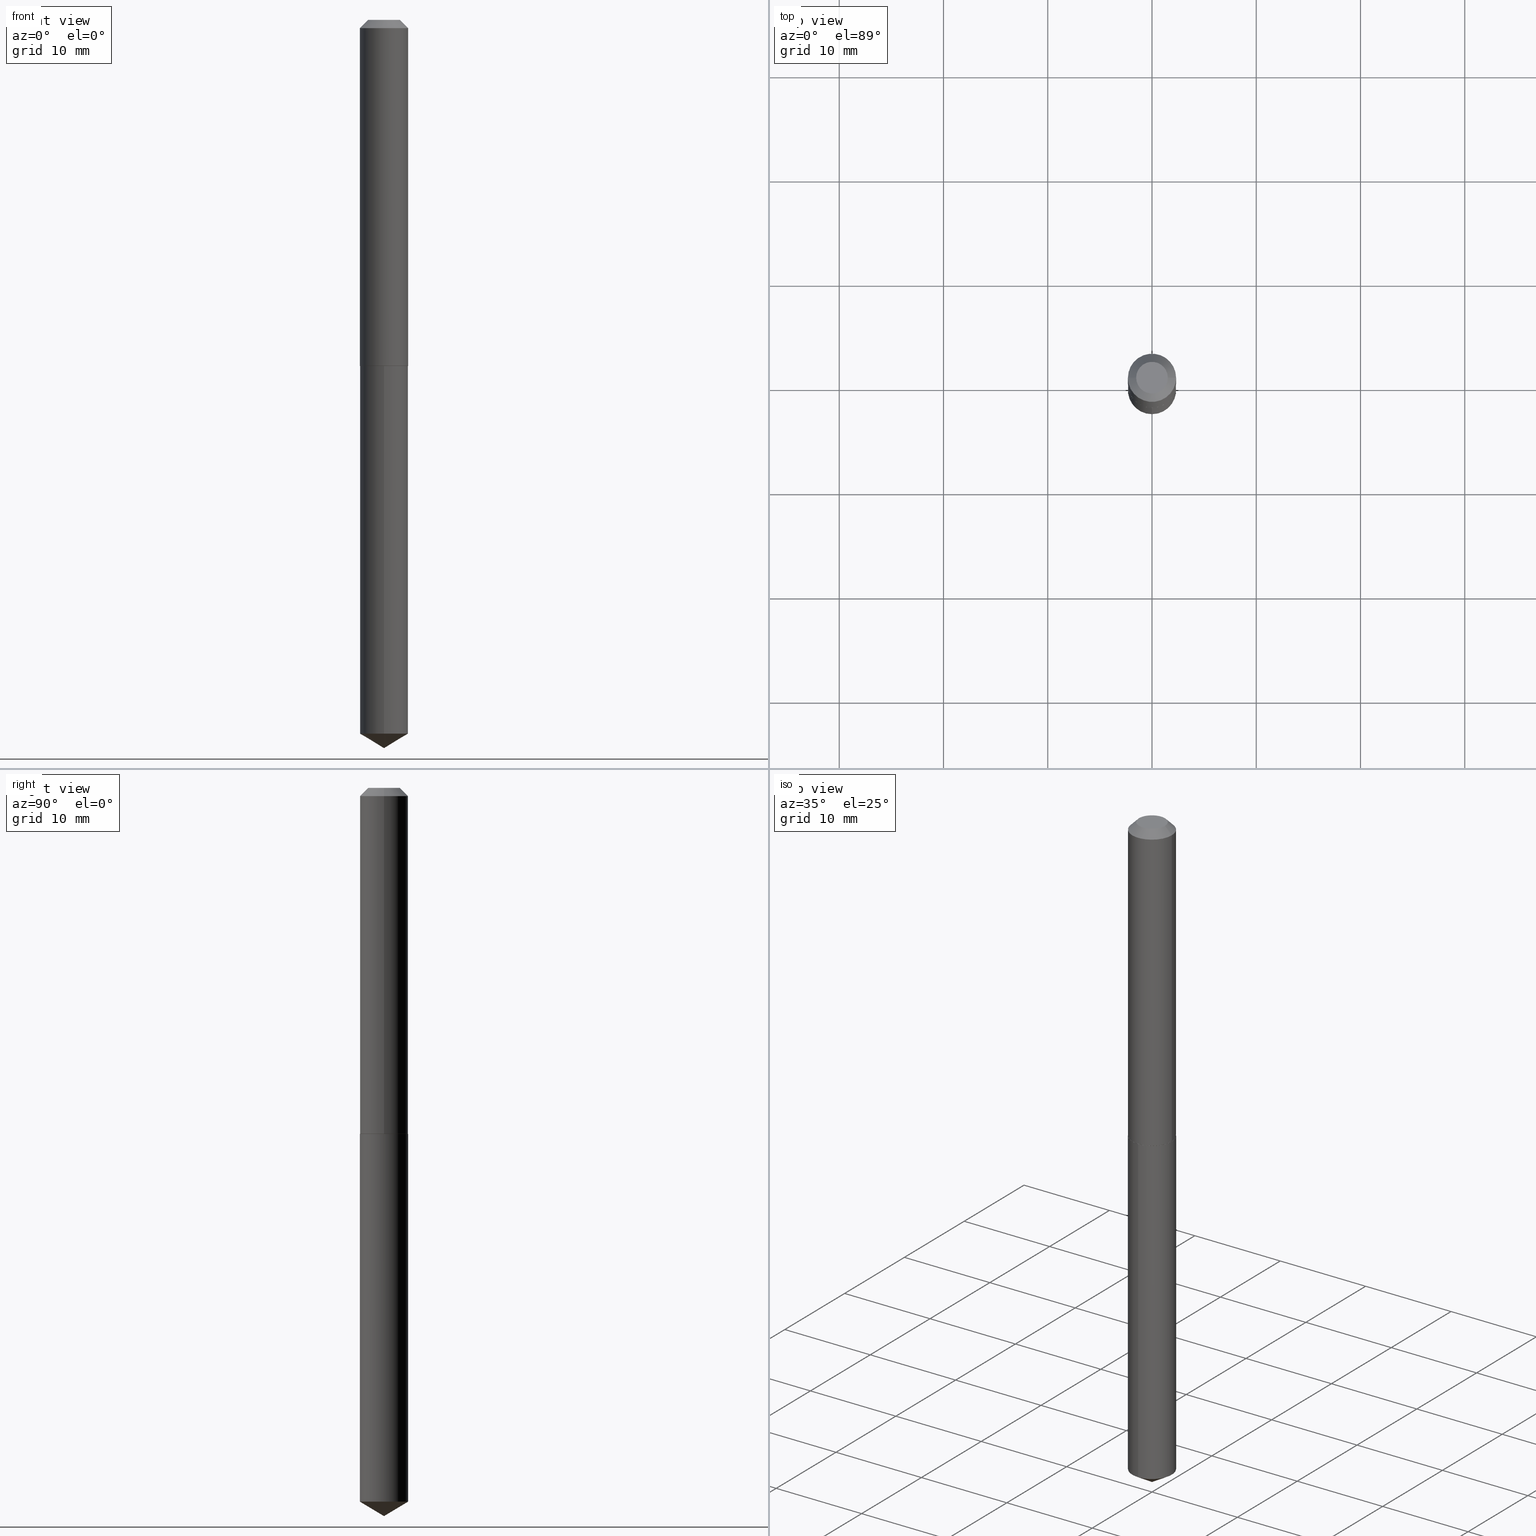
[diagram: canonical four-view strip — front | top / right | iso, engineering-drawing reading convention]
A machine part, canonical four-view strip (front | top / right | iso — engineering-drawing reading convention). The complete STEP part file that produces these views, byte-faithful:
ISO-10303-21;
HEADER;
FILE_DESCRIPTION (( 'STEP AP203' ),
    '1' );
FILE_NAME ('51014.STEP',
    '2024-04-22T18:13:09',
    ( '' ),
    ( '' ),
    'SwSTEP 2.0',
    'SolidWorks 2023',
    '' );
FILE_SCHEMA (( 'CONFIG_CONTROL_DESIGN' ));
ENDSEC;

DATA;
#1 = ORIENTED_EDGE ( 'NONE', *, *, #34, .F. ) ;
#2 = AXIS2_PLACEMENT_3D ( 'NONE', #306, #354, #184 ) ;
#3 = CIRCLE ( 'NONE', #191, 0.09100000000000016409 ) ;
#4 = EDGE_LOOP ( 'NONE', ( #113, #203, #83, #342 ) ) ;
#5 = APPROVAL ( #285, 'UNSPECIFIED' ) ;
#6 = CIRCLE ( 'NONE', #234, 0.09099999999999999756 ) ;
#7 = DIRECTION ( 'NONE',  ( -2.445415918018123002E-29, 3.491557077708516462E-15, 1.000000000000000000 ) ) ;
#8 = ORIENTED_EDGE ( 'NONE', *, *, #155, .T. ) ;
#9 = EDGE_CURVE ( 'NONE', #347, #157, #86, .T. ) ;
#10 = CARTESIAN_POINT ( 'NONE',  ( 6.465938895417571203E-16, 0.09099999999999544564, -1.306999999999999940 ) ) ;
#11 = DIRECTION ( 'NONE',  ( 1.000000000000000000, -6.982962677686267499E-15, 0.000000000000000000 ) ) ;
#12 = VECTOR ( 'NONE', #218, 39.37007874015748143 ) ;
#13 = CONICAL_SURFACE ( 'NONE', #182, 65.52281426576873002, 1.029744258676656532 ) ;
#14 = APPROVAL_ROLE ( '' ) ;
#15 = FACE_OUTER_BOUND ( 'NONE', #236, .T. ) ;
#16 = EDGE_CURVE ( 'NONE', #310, #123, #323, .T. ) ;
#17 = ORIENTED_EDGE ( 'NONE', *, *, #91, .T. ) ;
#18 = CYLINDRICAL_SURFACE ( 'NONE', #345, 0.09099999999999999756 ) ;
#19 = ORIENTED_EDGE ( 'NONE', *, *, #385, .T. ) ;
#20 = PLANE ( 'NONE',  #48 ) ;
#21 = SECURITY_CLASSIFICATION_LEVEL ( 'unclassified' ) ;
#22 = EDGE_LOOP ( 'NONE', ( #119, #221, #174, #28 ) ) ;
#23 = DIRECTION ( 'NONE',  ( -6.982962677686265922E-15, -1.000000000000000000, 3.002030762268421058E-15 ) ) ;
#24 = PERSON_AND_ORGANIZATION_ROLE ( 'creator' ) ;
#25 = CLOSED_SHELL ( 'NONE', ( #272, #324, #346, #100, #188, #172, #233, #104 ) ) ;
#26 = DIRECTION ( 'NONE',  ( 2.445415918018122722E-29, -3.491557077708516462E-15, -1.000000000000000000 ) ) ;
#27 = DIRECTION ( 'NONE',  ( -2.438088387897960049E-29, 3.491481338843145188E-15, 1.000000000000000000 ) ) ;
#28 = ORIENTED_EDGE ( 'NONE', *, *, #366, .F. ) ;
#29 = VECTOR ( 'NONE', #248, 39.37007874015748143 ) ;
#30 = AXIS2_PLACEMENT_3D ( 'NONE', #202, #41, #343 ) ;
#31 = ORIENTED_EDGE ( 'NONE', *, *, #366, .T. ) ;
#32 = PERSON_AND_ORGANIZATION ( #159, #349 ) ;
#33 = ORIENTED_EDGE ( 'NONE', *, *, #193, .T. ) ;
#34 = EDGE_CURVE ( 'NONE', #71, #328, #360, .T. ) ;
#35 =( CONVERSION_BASED_UNIT ( 'INCH', #287 ) LENGTH_UNIT ( ) NAMED_UNIT ( #69 ) );
#36 = AXIS2_PLACEMENT_3D ( 'NONE', #170, #68, #292 ) ;
#37 = EDGE_CURVE ( 'NONE', #71, #111, #181, .T. ) ;
#38 = DIRECTION ( 'NONE',  ( -0.7071067811864750752, 7.493145998870092258E-15, 0.7071067811866199593 ) ) ;
#39 = ORIENTED_EDGE ( 'NONE', *, *, #371, .F. ) ;
#40 = COORDINATED_UNIVERSAL_TIME_OFFSET ( 5, 0, .BEHIND. ) ;
#41 = DIRECTION ( 'NONE',  ( -2.445468806185136597E-29, 3.491481338843145583E-15, 1.000000000000000000 ) ) ;
#42 = CARTESIAN_POINT ( 'NONE',  ( 6.724893774549837836E-29, -9.601781963698420566E-15, -2.750000000000000000 ) ) ;
#43 = CARTESIAN_POINT ( 'NONE',  ( 4.492253318864006702E-48, -6.413747168845484567E-34, -1.836970198721036817E-19 ) ) ;
#44 = DATE_AND_TIME ( #219, #107 ) ;
#45 = ORIENTED_EDGE ( 'NONE', *, *, #37, .T. ) ;
#46 = DIRECTION ( 'NONE',  ( -6.982962677686265922E-15, -1.000000000000000000, 6.004061524536842117E-15 ) ) ;
#47 = CARTESIAN_POINT ( 'NONE',  ( 6.725033236504814566E-29, -9.601583982304340198E-15, -2.750000000000000000 ) ) ;
#48 = AXIS2_PLACEMENT_3D ( 'NONE', #309, #27, #361 ) ;
#49 = AXIS2_PLACEMENT_3D ( 'NONE', #375, #235, #293 ) ;
#50 = APPROVAL_PERSON_ORGANIZATION ( #213, #262, #183 ) ;
#51 = FACE_OUTER_BOUND ( 'NONE', #139, .T. ) ;
#52 = ORIENTED_EDGE ( 'NONE', *, *, #72, .F. ) ;
#53 = ORIENTED_EDGE ( 'NONE', *, *, #193, .F. ) ;
#54 = LOCAL_TIME ( 14, 13, 9.000000000000000000, #147 ) ;
#55 = CC_DESIGN_PERSON_AND_ORGANIZATION_ASSIGNMENT ( #268, #210, ( #357 ) ) ;
#56 = DATE_AND_TIME ( #156, #289 ) ;
#57 = PRODUCT ( '51014', '51014', '', ( #283 ) ) ;
#58 = CARTESIAN_POINT ( 'NONE',  ( 3.195004995280880408E-29, -4.561620369198569474E-15, -1.306499999999999773 ) ) ;
#59 = COORDINATED_UNIVERSAL_TIME_OFFSET ( 5, 0, .BEHIND. ) ;
#60 = VERTEX_POINT ( 'NONE', #246 ) ;
#61 = DIRECTION ( 'NONE',  ( -2.445468806185136597E-29, 3.491481338843145583E-15, 1.000000000000000000 ) ) ;
#62 = PRODUCT_RELATED_PRODUCT_CATEGORY ( 'detail', '', ( #57 ) ) ;
#63 = EDGE_LOOP ( 'NONE', ( #211, #98, #239, #194 ) ) ;
#64 = DIRECTION ( 'NONE',  ( -2.445415918018123002E-29, 3.491557077708516462E-15, 1.000000000000000000 ) ) ;
#65 = AXIS2_PLACEMENT_3D ( 'NONE', #373, #133, #257 ) ;
#66 = DIRECTION ( 'NONE',  ( -2.445415918018123002E-29, 3.491557077708516462E-15, 1.000000000000000000 ) ) ;
#67 = EDGE_CURVE ( 'NONE', #328, #313, #220, .T. ) ;
#68 = DIRECTION ( 'NONE',  ( -2.445415918018123002E-29, 3.491557077708516462E-15, 1.000000000000000000 ) ) ;
#69 = DIMENSIONAL_EXPONENTS ( 1.000000000000000000, 0.000000000000000000, 0.000000000000000000, 0.000000000000000000, 0.000000000000000000, 0.000000000000000000, 0.000000000000000000 ) ;
#70 = CARTESIAN_POINT ( 'NONE',  ( -0.09100000000000016409, -3.915026479656876942E-15, -1.306499999999999773 ) ) ;
#71 = VERTEX_POINT ( 'NONE', #128 ) ;
#72 = EDGE_CURVE ( 'NONE', #157, #347, #195, .T. ) ;
#73 = LOCAL_TIME ( 14, 13, 9.000000000000000000, #40 ) ;
#74 = ORIENTED_EDGE ( 'NONE', *, *, #140, .T. ) ;
#75 = ORIENTED_EDGE ( 'NONE', *, *, #91, .F. ) ;
#76 = ORIENTED_EDGE ( 'NONE', *, *, #385, .F. ) ;
#77 = MANIFOLD_SOLID_BREP ( 'Body-Move/Copy2[1]', #166 ) ;
#78 =( LENGTH_UNIT ( ) NAMED_UNIT ( * ) SI_UNIT ( $, .METRE. ) );
#79 = AXIS2_PLACEMENT_3D ( 'NONE', #146, #269, #116 ) ;
#80 = DIRECTION ( 'NONE',  ( 1.000000000000000000, -6.982962677686266711E-15, 4.876176775795936353E-29 ) ) ;
#81 = ORIENTED_EDGE ( 'NONE', *, *, #37, .F. ) ;
#82 = DIRECTION ( 'NONE',  ( -2.445468806185136597E-29, 3.491481338843145583E-15, 1.000000000000000000 ) ) ;
#83 = ORIENTED_EDGE ( 'NONE', *, *, #279, .F. ) ;
#84 = EDGE_CURVE ( 'NONE', #60, #244, #363, .T. ) ;
#85 = CYLINDRICAL_SURFACE ( 'NONE', #102, 0.09100000000000008082 ) ;
#86 = CIRCLE ( 'NONE', #364, 0.05974999999999999756 ) ;
#87 = AXIS2_PLACEMENT_3D ( 'NONE', #58, #61, #187 ) ;
#88 = CIRCLE ( 'NONE', #281, 0.09099999999999999756 ) ;
#89 = ADVANCED_BREP_SHAPE_REPRESENTATION ( '51014', ( #77, #90, #65 ), #298 ) ;
#90 = MANIFOLD_SOLID_BREP ( 'Body-Move/Copy2[2]', #25 ) ;
#91 = EDGE_CURVE ( 'NONE', #320, #313, #242, .T. ) ;
#92 = DATE_TIME_ROLE ( 'classification_date' ) ;
#93 = DIRECTION ( 'NONE',  ( 1.000000000000000000, -6.982962677686265922E-15, 0.000000000000000000 ) ) ;
#94 = PERSON_AND_ORGANIZATION ( #159, #349 ) ;
#95 = FACE_OUTER_BOUND ( 'NONE', #22, .T. ) ;
#96 = COORDINATED_UNIVERSAL_TIME_OFFSET ( 5, 0, .BEHIND. ) ;
#97 = DIRECTION ( 'NONE',  ( 0.7071067811864750752, -2.468850131081498176E-15, 0.7071067811866199593 ) ) ;
#98 = ORIENTED_EDGE ( 'NONE', *, *, #340, .T. ) ;
#99 = CARTESIAN_POINT ( 'NONE',  ( 3.196227729683973209E-29, -4.563366109867990978E-15, -1.306999999999999718 ) ) ;
#100 = ADVANCED_FACE ( 'NONE', ( #124 ), #20, .F. ) ;
#101 = FACE_OUTER_BOUND ( 'NONE', #110, .T. ) ;
#102 = AXIS2_PLACEMENT_3D ( 'NONE', #115, #82, #80 ) ;
#103 = DIRECTION ( 'NONE',  ( -6.982962677686265922E-15, -1.000000000000000000, 3.002030762268421058E-15 ) ) ;
#104 = ADVANCED_FACE ( 'NONE', ( #222 ), #241, .F. ) ;
#105 = AXIS2_PLACEMENT_3D ( 'NONE', #384, #121, #390 ) ;
#106 = AXIS2_PLACEMENT_3D ( 'NONE', #224, #64, #192 ) ;
#107 = LOCAL_TIME ( 14, 13, 9.000000000000000000, #304 ) ;
#108 = EDGE_LOOP ( 'NONE', ( #45, #266, #325, #1 ) ) ;
#109 = LINE ( 'NONE', #168, #200 ) ;
#110 = EDGE_LOOP ( 'NONE', ( #341, #19, #251 ) ) ;
#111 = VERTEX_POINT ( 'NONE', #337 ) ;
#112 = VECTOR ( 'NONE', #226, 39.37007874015748143 ) ;
#113 = ORIENTED_EDGE ( 'NONE', *, *, #252, .T. ) ;
#114 = CARTESIAN_POINT ( 'NONE',  ( 3.196227729683973209E-29, -4.563366109867990978E-15, -1.306999999999999718 ) ) ;
#115 = CARTESIAN_POINT ( 'NONE',  ( 0.000000000000000000, 0.000000000000000000, 0.000000000000000000 ) ) ;
#116 = DIRECTION ( 'NONE',  ( -1.000000000000000000, 6.982962677686265922E-15, 0.000000000000000000 ) ) ;
#117 = APPROVAL_PERSON_ORGANIZATION ( #165, #5, #14 ) ;
#118 = CARTESIAN_POINT ( 'NONE',  ( 0.09100000000000016409, -5.197069972868021228E-15, -1.306499999999999773 ) ) ;
#119 = ORIENTED_EDGE ( 'NONE', *, *, #258, .F. ) ;
#120 = DATE_AND_TIME ( #151, #164 ) ;
#121 = DIRECTION ( 'NONE',  ( -2.445468806185136597E-29, 3.491481338843145583E-15, 1.000000000000000000 ) ) ;
#122 = APPROVAL_DATE_TIME ( #120, #197 ) ;
#123 = VERTEX_POINT ( 'NONE', #152 ) ;
#124 = FACE_OUTER_BOUND ( 'NONE', #282, .T. ) ;
#125 = CC_DESIGN_PERSON_AND_ORGANIZATION_ASSIGNMENT ( #153, #333, ( #137 ) ) ;
#126 = APPLICATION_CONTEXT ( 'configuration controlled 3d designs of mechanical parts and assemblies' ) ;
#127 = CC_DESIGN_DATE_AND_TIME_ASSIGNMENT ( #56, #92, ( #137 ) ) ;
#128 = CARTESIAN_POINT ( 'NONE',  ( 0.09050000000000009426, -5.195324232198599724E-15, -1.306999999999999940 ) ) ;
#129 = DIRECTION ( 'NONE',  ( 6.090539988449787113E-15, 0.8571673007021152202, 0.5150380749100493816 ) ) ;
#130 = AXIS2_PLACEMENT_3D ( 'NONE', #387, #332, #245 ) ;
#131 = CC_DESIGN_SECURITY_CLASSIFICATION ( #137, ( #215 ) ) ;
#132 = CC_DESIGN_PERSON_AND_ORGANIZATION_ASSIGNMENT ( #32, #169, ( #57 ) ) ;
#133 = DIRECTION ( 'NONE',  ( 0.000000000000000000, 0.000000000000000000, 1.000000000000000000 ) ) ;
#134 = ORIENTED_EDGE ( 'NONE', *, *, #67, .T. ) ;
#135 = LINE ( 'NONE', #250, #228 ) ;
#136 = AXIS2_PLACEMENT_3D ( 'NONE', #205, #379, #327 ) ;
#137 = SECURITY_CLASSIFICATION ( '', '', #21 ) ;
#138 = CARTESIAN_POINT ( 'NONE',  ( 6.591251674256625634E-29, -9.410770510616920371E-15, -2.695321683668492341 ) ) ;
#139 = EDGE_LOOP ( 'NONE', ( #76, #162, #39 ) ) ;
#140 = EDGE_CURVE ( 'NONE', #284, #244, #88, .T. ) ;
#141 = DIRECTION ( 'NONE',  ( -2.445415918018123283E-29, 3.491557077708516462E-15, 1.000000000000000000 ) ) ;
#142 = CARTESIAN_POINT ( 'NONE',  ( 6.465938895417229034E-16, 0.09099999999999544564, -1.306999999999999940 ) ) ;
#143 = CARTESIAN_POINT ( 'NONE',  ( -0.05974999999999999756, 4.717864159111778069E-16, -1.836970198752120845E-19 ) ) ;
#144 = AXIS2_PLACEMENT_3D ( 'NONE', #114, #318, #237 ) ;
#145 = EDGE_CURVE ( 'NONE', #244, #284, #254, .T. ) ;
#146 = CARTESIAN_POINT ( 'NONE',  ( 7.642090019328598283E-31, -1.091087918388489651E-16, -0.03125000000000019429 ) ) ;
#147 = COORDINATED_UNIVERSAL_TIME_OFFSET ( 5, 0, .BEHIND. ) ;
#148 = VECTOR ( 'NONE', #129, 39.37007874015748854 ) ;
#149 = CONICAL_SURFACE ( 'NONE', #49, 0.09099999999999999756, 0.7853981633974452814 ) ;
#150 = DIRECTION ( 'NONE',  ( -6.982962677686265922E-15, -1.000000000000000000, 3.002030762268421058E-15 ) ) ;
#151 = CALENDAR_DATE ( 2024, 22, 4 ) ;
#152 = CARTESIAN_POINT ( 'NONE',  ( 6.465938895417569231E-16, 0.09099999999999058842, -2.695321683668492785 ) ) ;
#153 = PERSON_AND_ORGANIZATION ( #159, #349 ) ;
#154 = CARTESIAN_POINT ( 'NONE',  ( 2.246126659432003351E-48, -3.206873584422742284E-34, -9.184850993605184086E-20 ) ) ;
#155 = EDGE_CURVE ( 'NONE', #123, #60, #370, .T. ) ;
#156 = CALENDAR_DATE ( 2024, 22, 4 ) ;
#157 = VERTEX_POINT ( 'NONE', #280 ) ;
#158 = DIRECTION ( 'NONE',  ( 6.982962677686265922E-15, 1.000000000000000000, -3.491557077708516462E-15 ) ) ;
#159 = PERSON ( 'UNSPECIFIED', 'UNSPECIFIED', 'UNSPECIFIED', ('UNSPECIFIED'), ('UNSPECIFIED'), ('UNSPECIFIED') ) ;
#160 = LINE ( 'NONE', #329, #308 ) ;
#161 = DIRECTION ( 'NONE',  ( -2.445415918018123002E-29, 3.491557077708516462E-15, 1.000000000000000000 ) ) ;
#162 = ORIENTED_EDGE ( 'NONE', *, *, #16, .T. ) ;
#163 = ADVANCED_FACE ( 'NONE', ( #339 ), #18, .T. ) ;
#164 = LOCAL_TIME ( 14, 13, 9.000000000000000000, #96 ) ;
#165 = PERSON_AND_ORGANIZATION ( #159, #349 ) ;
#166 = CLOSED_SHELL ( 'NONE', ( #350, #359, #267, #163, #189 ) ) ;
#167 = APPROVAL_PERSON_ORGANIZATION ( #185, #197, #383 ) ;
#168 = CARTESIAN_POINT ( 'NONE',  ( 6.724893774549837836E-29, -9.601781963698422143E-15, -2.750000000000000000 ) ) ;
#169 = PERSON_AND_ORGANIZATION_ROLE ( 'design_owner' ) ;
#170 = CARTESIAN_POINT ( 'NONE',  ( -8.955125434542387134E-28, 1.278611941021370622E-13, 36.62007874015748143 ) ) ;
#171 = UNCERTAINTY_MEASURE_WITH_UNIT (LENGTH_MEASURE( 1.000000000000000082E-05 ), #35, 'distance_accuracy_value', 'NONE');
#172 = ADVANCED_FACE ( 'NONE', ( #356 ), #382, .T. ) ;
#173 = CARTESIAN_POINT ( 'NONE',  ( 3.195004995280880408E-29, -4.561620369198569474E-15, -1.306499999999999773 ) ) ;
#174 = ORIENTED_EDGE ( 'NONE', *, *, #34, .T. ) ;
#175 = VECTOR ( 'NONE', #38, 39.37007874015748143 ) ;
#176 = CARTESIAN_POINT ( 'NONE',  ( -8.955125434542387134E-28, 1.278611941021370622E-13, 36.62007874015748143 ) ) ;
#177 = DIRECTION ( 'NONE',  ( 1.000000000000000000, -6.982962677686266711E-15, 4.876164187836129365E-29 ) ) ;
#178 = DIRECTION ( 'NONE',  ( -0.7071067811865453523, 2.468850131082234184E-15, -0.7071067811865496822 ) ) ;
#179 = CARTESIAN_POINT ( 'NONE',  ( 0.09100000000000008082, -6.354496036694508663E-16, 4.437320865974305944E-30 ) ) ;
#180 = ORIENTED_EDGE ( 'NONE', *, *, #340, .F. ) ;
#181 = CIRCLE ( 'NONE', #2, 0.09050000000000009426 ) ;
#182 = AXIS2_PLACEMENT_3D ( 'NONE', #176, #322, #232 ) ;
#183 = APPROVAL_ROLE ( '' ) ;
#184 = DIRECTION ( 'NONE',  ( 1.000000000000000000, -6.982962677686266711E-15, 0.000000000000000000 ) ) ;
#185 = PERSON_AND_ORGANIZATION ( #159, #349 ) ;
#186 = ORIENTED_EDGE ( 'NONE', *, *, #145, .T. ) ;
#187 = DIRECTION ( 'NONE',  ( 1.000000000000000000, -6.982962677686267499E-15, 0.000000000000000000 ) ) ;
#188 = ADVANCED_FACE ( 'NONE', ( #95 ), #316, .T. ) ;
#189 = ADVANCED_FACE ( 'NONE', ( #336 ), #190, .F. ) ;
#190 = PLANE ( 'NONE',  #223 ) ;
#191 = AXIS2_PLACEMENT_3D ( 'NONE', #351, #300, #315 ) ;
#192 = DIRECTION ( 'NONE',  ( -6.982962677686265922E-15, -1.000000000000000000, 6.004061524536842117E-15 ) ) ;
#193 = EDGE_CURVE ( 'NONE', #157, #313, #278, .T. ) ;
#194 = ORIENTED_EDGE ( 'NONE', *, *, #84, .F. ) ;
#195 = CIRCLE ( 'NONE', #105, 0.05974999999999999756 ) ;
#196 = CIRCLE ( 'NONE', #30, 0.09100000000000016409 ) ;
#197 = APPROVAL ( #358, 'UNSPECIFIED' ) ;
#198 = DIRECTION ( 'NONE',  ( -2.445468806185136597E-29, 3.491481338843145583E-15, 1.000000000000000000 ) ) ;
#199 = VECTOR ( 'NONE', #97, 39.37007874015748143 ) ;
#200 = VECTOR ( 'NONE', #290, 39.37007874015748143 ) ;
#201 = EDGE_CURVE ( 'NONE', #259, #320, #135, .T. ) ;
#202 = CARTESIAN_POINT ( 'NONE',  ( 3.195004995280880408E-29, -4.561620369198569474E-15, -1.306499999999999773 ) ) ;
#203 = ORIENTED_EDGE ( 'NONE', *, *, #201, .T. ) ;
#204 = CALENDAR_DATE ( 2024, 22, 4 ) ;
#205 = CARTESIAN_POINT ( 'NONE',  ( 7.642090019328598283E-31, -1.091087918388489651E-16, -0.03125000000000019429 ) ) ;
#206 = DIRECTION ( 'NONE',  ( -2.445468806185136597E-29, 3.491481338843145583E-15, 1.000000000000000000 ) ) ;
#207 = LINE ( 'NONE', #142, #209 ) ;
#208 = ORIENTED_EDGE ( 'NONE', *, *, #301, .F. ) ;
#209 = VECTOR ( 'NONE', #141, 39.37007874015748143 ) ;
#210 = PERSON_AND_ORGANIZATION_ROLE ( 'creator' ) ;
#211 = ORIENTED_EDGE ( 'NONE', *, *, #371, .T. ) ;
#212 = EDGE_CURVE ( 'NONE', #347, #320, #160, .T. ) ;
#213 = PERSON_AND_ORGANIZATION ( #159, #349 ) ;
#214 = DIRECTION ( 'NONE',  ( -2.445415918018123002E-29, 3.491557077708516462E-15, 1.000000000000000000 ) ) ;
#215 = PRODUCT_DEFINITION_FORMATION_WITH_SPECIFIED_SOURCE ( 'ANY', '', #57, .NOT_KNOWN. ) ;
#216 = CC_DESIGN_DATE_AND_TIME_ASSIGNMENT ( #240, #386, ( #357 ) ) ;
#217 = PERSON_AND_ORGANIZATION_ROLE ( 'design_supplier' ) ;
#218 = DIRECTION ( 'NONE',  ( -2.445415918018123283E-29, 3.491557077708516462E-15, 1.000000000000000000 ) ) ;
#219 = CALENDAR_DATE ( 2024, 22, 4 ) ;
#220 = LINE ( 'NONE', #179, #29 ) ;
#221 = ORIENTED_EDGE ( 'NONE', *, *, #301, .T. ) ;
#222 = FACE_OUTER_BOUND ( 'NONE', #274, .T. ) ;
#223 = AXIS2_PLACEMENT_3D ( 'NONE', #307, #26, #158 ) ;
#224 = CARTESIAN_POINT ( 'NONE',  ( 6.591251674256625634E-29, -9.410770510616920371E-15, -2.695321683668492341 ) ) ;
#225 = CARTESIAN_POINT ( 'NONE',  ( -0.09100000000000016409, -3.915026479656876942E-15, -1.306499999999999773 ) ) ;
#226 = DIRECTION ( 'NONE',  ( 0.7071067811865453523, -7.319954787623248157E-15, -0.7071067811865496822 ) ) ;
#227 =( NAMED_UNIT ( * ) PLANE_ANGLE_UNIT ( ) SI_UNIT ( $, .RADIAN. ) );
#228 = VECTOR ( 'NONE', #253, 39.37007874015748143 ) ;
#229 = CC_DESIGN_PERSON_AND_ORGANIZATION_ASSIGNMENT ( #94, #217, ( #215 ) ) ;
#230 = CC_DESIGN_APPROVAL ( #197, ( #215 ) ) ;
#231 = ORIENTED_EDGE ( 'NONE', *, *, #212, .F. ) ;
#232 = DIRECTION ( 'NONE',  ( -6.982962677686266711E-15, -1.000000000000000000, 3.468864327941578437E-15 ) ) ;
#233 = ADVANCED_FACE ( 'NONE', ( #15 ), #311, .T. ) ;
#234 = AXIS2_PLACEMENT_3D ( 'NONE', #138, #7, #46 ) ;
#235 = DIRECTION ( 'NONE',  ( 2.445468806185136597E-29, -3.491481338843145583E-15, -1.000000000000000000 ) ) ;
#236 = EDGE_LOOP ( 'NONE', ( #53, #296, #352, #17 ) ) ;
#237 = DIRECTION ( 'NONE',  ( -6.982962677686265922E-15, -1.000000000000000000, 3.002030762268421058E-15 ) ) ;
#238 = CARTESIAN_POINT ( 'NONE',  ( 7.642090019328598283E-31, -1.091087918388489651E-16, -0.03125000000000019429 ) ) ;
#239 = ORIENTED_EDGE ( 'NONE', *, *, #145, .F. ) ;
#240 = DATE_AND_TIME ( #243, #54 ) ;
#241 = PLANE ( 'NONE',  #276 ) ;
#242 = CIRCLE ( 'NONE', #297, 0.09099999999999999756 ) ;
#243 = CALENDAR_DATE ( 2024, 22, 4 ) ;
#244 = VERTEX_POINT ( 'NONE', #367 ) ;
#245 = DIRECTION ( 'NONE',  ( 1.000000000000000000, -6.982962677686266711E-15, 4.876176775795936353E-29 ) ) ;
#246 = CARTESIAN_POINT ( 'NONE',  ( -6.354496036693843061E-16, -0.09100000000000940670, -2.695321683668491453 ) ) ;
#247 = ORIENTED_EDGE ( 'NONE', *, *, #72, .T. ) ;
#248 = DIRECTION ( 'NONE',  ( -2.445468806185136877E-29, 3.491481338843145188E-15, 1.000000000000000000 ) ) ;
#249 = EDGE_LOOP ( 'NONE', ( #186, #74 ) ) ;
#250 = CARTESIAN_POINT ( 'NONE',  ( -0.09100000000000008082, 6.465938895416917434E-16, -4.476230932131968404E-30 ) ) ;
#251 = ORIENTED_EDGE ( 'NONE', *, *, #155, .F. ) ;
#252 = EDGE_CURVE ( 'NONE', #328, #259, #196, .T. ) ;
#253 = DIRECTION ( 'NONE',  ( -2.445468806185136877E-29, 3.491481338843145188E-15, 1.000000000000000000 ) ) ;
#254 = CIRCLE ( 'NONE', #380, 0.09099999999999999756 ) ;
#255 = CC_DESIGN_APPROVAL ( #262, ( #137 ) ) ;
#256 = FACE_OUTER_BOUND ( 'NONE', #63, .T. ) ;
#257 = DIRECTION ( 'NONE',  ( 1.000000000000000000, 0.000000000000000000, 0.000000000000000000 ) ) ;
#258 = EDGE_CURVE ( 'NONE', #111, #259, #317, .T. ) ;
#259 = VERTEX_POINT ( 'NONE', #70 ) ;
#260 = FACE_OUTER_BOUND ( 'NONE', #388, .T. ) ;
#261 = FACE_OUTER_BOUND ( 'NONE', #108, .T. ) ;
#262 = APPROVAL ( #331, 'UNSPECIFIED' ) ;
#263 = DIRECTION ( 'NONE',  ( -2.445468806185136597E-29, 3.491481338843145583E-15, 1.000000000000000000 ) ) ;
#264 = DATE_AND_TIME ( #204, #73 ) ;
#265 = CARTESIAN_POINT ( 'NONE',  ( -0.09099999999999999756, -1.688770690977016952E-15, -0.03125000000000019429 ) ) ;
#266 = ORIENTED_EDGE ( 'NONE', *, *, #258, .T. ) ;
#267 = ADVANCED_FACE ( 'NONE', ( #101 ), #277, .T. ) ;
#268 = PERSON_AND_ORGANIZATION ( #159, #349 ) ;
#269 = DIRECTION ( 'NONE',  ( 2.445468806185136597E-29, -3.491481338843145583E-15, -1.000000000000000000 ) ) ;
#270 = AXIS2_PLACEMENT_3D ( 'NONE', #294, #198, #372 ) ;
#271 = CARTESIAN_POINT ( 'NONE',  ( -6.354496036694183257E-16, -0.09100000000000456335, -1.306999999999999496 ) ) ;
#272 = ADVANCED_FACE ( 'NONE', ( #260 ), #149, .T. ) ;
#273 = CARTESIAN_POINT ( 'NONE',  ( 3.196227729683973209E-29, -4.563366109867990978E-15, -1.306999999999999718 ) ) ;
#274 = EDGE_LOOP ( 'NONE', ( #368, #247 ) ) ;
#275 = CARTESIAN_POINT ( 'NONE',  ( 3.196227729683973209E-29, -4.563366109867990978E-15, -1.306999999999999718 ) ) ;
#276 = AXIS2_PLACEMENT_3D ( 'NONE', #154, #334, #302 ) ;
#277 = CONICAL_SURFACE ( 'NONE', #36, 65.52281426576873002, 1.029744258676656532 ) ;
#278 = LINE ( 'NONE', #389, #112 ) ;
#279 = EDGE_CURVE ( 'NONE', #313, #320, #326, .T. ) ;
#280 = CARTESIAN_POINT ( 'NONE',  ( 0.05974999999999999756, -5.716644325014536685E-16, -1.836970198686465412E-19 ) ) ;
#281 = AXIS2_PLACEMENT_3D ( 'NONE', #275, #214, #103 ) ;
#282 = EDGE_LOOP ( 'NONE', ( #81, #208 ) ) ;
#283 = MECHANICAL_CONTEXT ( 'NONE', #374, 'mechanical' ) ;
#284 = VERTEX_POINT ( 'NONE', #10 ) ;
#285 = APPROVAL_STATUS ( 'not_yet_approved' ) ;
#286 = EDGE_LOOP ( 'NONE', ( #288, #31, #134, #75 ) ) ;
#287 = LENGTH_MEASURE_WITH_UNIT ( LENGTH_MEASURE( 0.02539999999999999897 ), #78 );
#288 = ORIENTED_EDGE ( 'NONE', *, *, #201, .F. ) ;
#289 = LOCAL_TIME ( 14, 13, 9.000000000000000000, #59 ) ;
#290 = DIRECTION ( 'NONE',  ( -5.985567269335949957E-15, -0.8571673007021116675, 0.5150380749100553768 ) ) ;
#291 = DESIGN_CONTEXT ( 'detailed design', #126, 'design' ) ;
#292 = DIRECTION ( 'NONE',  ( -6.982962677686266711E-15, -1.000000000000000000, 3.468864327941578437E-15 ) ) ;
#293 = DIRECTION ( 'NONE',  ( -1.000000000000000000, 6.982962677686265922E-15, 0.000000000000000000 ) ) ;
#294 = CARTESIAN_POINT ( 'NONE',  ( 3.196227729683973770E-29, -4.563366109867991767E-15, -1.306999999999999940 ) ) ;
#295 = SHAPE_DEFINITION_REPRESENTATION ( #303, #89 ) ;
#296 = ORIENTED_EDGE ( 'NONE', *, *, #9, .F. ) ;
#297 = AXIS2_PLACEMENT_3D ( 'NONE', #238, #305, #93 ) ;
#298 =( GEOMETRIC_REPRESENTATION_CONTEXT ( 3 ) GLOBAL_UNCERTAINTY_ASSIGNED_CONTEXT ( ( #171 ) ) GLOBAL_UNIT_ASSIGNED_CONTEXT ( ( #35, #227, #312 ) ) REPRESENTATION_CONTEXT ( 'NONE', 'WORKASPACE' ) );
#299 = CC_DESIGN_PERSON_AND_ORGANIZATION_ASSIGNMENT ( #355, #24, ( #215 ) ) ;
#300 = DIRECTION ( 'NONE',  ( -2.445468806185136597E-29, 3.491481338843145583E-15, 1.000000000000000000 ) ) ;
#301 = EDGE_CURVE ( 'NONE', #111, #71, #353, .T. ) ;
#302 = DIRECTION ( 'NONE',  ( -1.000000000000000000, 6.982962677686265922E-15, -4.876176775795935793E-29 ) ) ;
#303 = PRODUCT_DEFINITION_SHAPE ( 'NONE', 'NONE',  #357 ) ;
#304 = COORDINATED_UNIVERSAL_TIME_OFFSET ( 5, 0, .BEHIND. ) ;
#305 = DIRECTION ( 'NONE',  ( -2.445468806185136597E-29, 3.491481338843145583E-15, 1.000000000000000000 ) ) ;
#306 = CARTESIAN_POINT ( 'NONE',  ( 3.196227729683973770E-29, -4.563366109867991767E-15, -1.306999999999999940 ) ) ;
#307 = CARTESIAN_POINT ( 'NONE',  ( 3.196227729683973209E-29, -4.563366109867990978E-15, -1.306999999999999718 ) ) ;
#308 = VECTOR ( 'NONE', #178, 39.37007874015748143 ) ;
#309 = CARTESIAN_POINT ( 'NONE',  ( 4.412172210434663244E-30, -8.508697963701345589E-15, -1.306999999999999940 ) ) ;
#310 = VERTEX_POINT ( 'NONE', #42 ) ;
#311 = CONICAL_SURFACE ( 'NONE', #79, 0.09099999999999999756, 0.7853981633974452814 ) ;
#312 =( NAMED_UNIT ( * ) SI_UNIT ( $, .STERADIAN. ) SOLID_ANGLE_UNIT ( ) );
#313 = VERTEX_POINT ( 'NONE', #348 ) ;
#314 = APPLICATION_PROTOCOL_DEFINITION ( 'international standard', 'config_control_design', 1994, #374 ) ;
#315 = DIRECTION ( 'NONE',  ( 1.000000000000000000, -6.982962677686267499E-15, 0.000000000000000000 ) ) ;
#316 = CONICAL_SURFACE ( 'NONE', #87, 0.09100000000000016409, 0.7853981633973459164 ) ;
#317 = LINE ( 'NONE', #225, #175 ) ;
#318 = DIRECTION ( 'NONE',  ( -2.445415918018123002E-29, 3.491557077708516462E-15, 1.000000000000000000 ) ) ;
#319 = CARTESIAN_POINT ( 'NONE',  ( 0.09100000000000016409, -5.197069972868021228E-15, -1.306499999999999773 ) ) ;
#320 = VERTEX_POINT ( 'NONE', #265 ) ;
#321 = APPROVAL_DATE_TIME ( #264, #5 ) ;
#322 = DIRECTION ( 'NONE',  ( -2.445415918018123002E-29, 3.491557077708516462E-15, 1.000000000000000000 ) ) ;
#323 = LINE ( 'NONE', #47, #148 ) ;
#324 = ADVANCED_FACE ( 'NONE', ( #376 ), #85, .T. ) ;
#325 = ORIENTED_EDGE ( 'NONE', *, *, #252, .F. ) ;
#326 = CIRCLE ( 'NONE', #136, 0.09099999999999999756 ) ;
#327 = DIRECTION ( 'NONE',  ( 1.000000000000000000, -6.982962677686265922E-15, 0.000000000000000000 ) ) ;
#328 = VERTEX_POINT ( 'NONE', #319 ) ;
#329 = CARTESIAN_POINT ( 'NONE',  ( -0.09099999999999999756, 5.263408118306012726E-16, -0.03125000000000019429 ) ) ;
#330 = APPROVAL_DATE_TIME ( #44, #262 ) ;
#331 = APPROVAL_STATUS ( 'not_yet_approved' ) ;
#332 = DIRECTION ( 'NONE',  ( -2.445468806185136597E-29, 3.491481338843145583E-15, 1.000000000000000000 ) ) ;
#333 = PERSON_AND_ORGANIZATION_ROLE ( 'classification_officer' ) ;
#334 = DIRECTION ( 'NONE',  ( 2.438088387897960049E-29, -3.491481338843145188E-15, -1.000000000000000000 ) ) ;
#335 = ORIENTED_EDGE ( 'NONE', *, *, #84, .T. ) ;
#336 = FACE_OUTER_BOUND ( 'NONE', #249, .T. ) ;
#337 = CARTESIAN_POINT ( 'NONE',  ( -0.09050000000000009426, -3.917675706830988932E-15, -1.306999999999999940 ) ) ;
#338 = CC_DESIGN_APPROVAL ( #5, ( #357 ) ) ;
#339 = FACE_OUTER_BOUND ( 'NONE', #369, .T. ) ;
#340 = EDGE_CURVE ( 'NONE', #123, #284, #207, .T. ) ;
#341 = ORIENTED_EDGE ( 'NONE', *, *, #16, .F. ) ;
#342 = ORIENTED_EDGE ( 'NONE', *, *, #67, .F. ) ;
#343 = DIRECTION ( 'NONE',  ( 1.000000000000000000, -6.982962677686267499E-15, 0.000000000000000000 ) ) ;
#344 = APPLICATION_PROTOCOL_DEFINITION ( 'international standard', 'config_control_design', 1994, #126 ) ;
#345 = AXIS2_PLACEMENT_3D ( 'NONE', #99, #161, #150 ) ;
#346 = ADVANCED_FACE ( 'NONE', ( #261 ), #377, .T. ) ;
#347 = VERTEX_POINT ( 'NONE', #143 ) ;
#348 = CARTESIAN_POINT ( 'NONE',  ( 0.09099999999999999756, -7.445583955082991780E-16, -0.03125000000000019429 ) ) ;
#349 = ORGANIZATION ( 'UNSPECIFIED', 'UNSPECIFIED', '' ) ;
#350 = ADVANCED_FACE ( 'NONE', ( #256 ), #378, .T. ) ;
#351 = CARTESIAN_POINT ( 'NONE',  ( 3.195004995280880408E-29, -4.561620369198569474E-15, -1.306499999999999773 ) ) ;
#352 = ORIENTED_EDGE ( 'NONE', *, *, #212, .T. ) ;
#353 = CIRCLE ( 'NONE', #270, 0.09050000000000009426 ) ;
#354 = DIRECTION ( 'NONE',  ( -2.445468806185136597E-29, 3.491481338843145583E-15, 1.000000000000000000 ) ) ;
#355 = PERSON_AND_ORGANIZATION ( #159, #349 ) ;
#356 = FACE_OUTER_BOUND ( 'NONE', #286, .T. ) ;
#357 = PRODUCT_DEFINITION ( 'UNKNOWN', '', #215, #291 ) ;
#358 = APPROVAL_STATUS ( 'not_yet_approved' ) ;
#359 = ADVANCED_FACE ( 'NONE', ( #51 ), #13, .T. ) ;
#360 = LINE ( 'NONE', #118, #199 ) ;
#361 = DIRECTION ( 'NONE',  ( 1.000000000000000000, -6.982962677686265922E-15, 4.876176775795935793E-29 ) ) ;
#362 = ORIENTED_EDGE ( 'NONE', *, *, #140, .F. ) ;
#363 = LINE ( 'NONE', #271, #12 ) ;
#364 = AXIS2_PLACEMENT_3D ( 'NONE', #43, #206, #177 ) ;
#365 = AXIS2_PLACEMENT_3D ( 'NONE', #173, #263, #11 ) ;
#366 = EDGE_CURVE ( 'NONE', #259, #328, #3, .T. ) ;
#367 = CARTESIAN_POINT ( 'NONE',  ( -6.354496036694183257E-16, -0.09100000000000456335, -1.306999999999999496 ) ) ;
#368 = ORIENTED_EDGE ( 'NONE', *, *, #9, .T. ) ;
#369 = EDGE_LOOP ( 'NONE', ( #180, #8, #335, #362 ) ) ;
#370 = CIRCLE ( 'NONE', #106, 0.09099999999999999756 ) ;
#371 = EDGE_CURVE ( 'NONE', #60, #123, #6, .T. ) ;
#372 = DIRECTION ( 'NONE',  ( 1.000000000000000000, -6.982962677686266711E-15, 0.000000000000000000 ) ) ;
#373 = CARTESIAN_POINT ( 'NONE',  ( 0.000000000000000000, 0.000000000000000000, 0.000000000000000000 ) ) ;
#374 = APPLICATION_CONTEXT ( 'configuration controlled 3d designs of mechanical parts and assemblies' ) ;
#375 = CARTESIAN_POINT ( 'NONE',  ( 7.642090019328598283E-31, -1.091087918388489651E-16, -0.03125000000000019429 ) ) ;
#376 = FACE_OUTER_BOUND ( 'NONE', #4, .T. ) ;
#377 = CONICAL_SURFACE ( 'NONE', #365, 0.09100000000000016409, 0.7853981633973459164 ) ;
#378 = CYLINDRICAL_SURFACE ( 'NONE', #144, 0.09099999999999999756 ) ;
#379 = DIRECTION ( 'NONE',  ( -2.445468806185136597E-29, 3.491481338843145583E-15, 1.000000000000000000 ) ) ;
#380 = AXIS2_PLACEMENT_3D ( 'NONE', #273, #66, #23 ) ;
#381 = ORIENTED_EDGE ( 'NONE', *, *, #279, .T. ) ;
#382 = CYLINDRICAL_SURFACE ( 'NONE', #130, 0.09100000000000008082 ) ;
#383 = APPROVAL_ROLE ( '' ) ;
#384 = CARTESIAN_POINT ( 'NONE',  ( 4.492253318864006702E-48, -6.413747168845484567E-34, -1.836970198721036817E-19 ) ) ;
#385 = EDGE_CURVE ( 'NONE', #310, #60, #109, .T. ) ;
#386 = DATE_TIME_ROLE ( 'creation_date' ) ;
#387 = CARTESIAN_POINT ( 'NONE',  ( 0.000000000000000000, 0.000000000000000000, 0.000000000000000000 ) ) ;
#388 = EDGE_LOOP ( 'NONE', ( #52, #33, #381, #231 ) ) ;
#389 = CARTESIAN_POINT ( 'NONE',  ( 0.09099999999999999756, -7.334141096360583009E-16, -0.03125000000000019429 ) ) ;
#390 = DIRECTION ( 'NONE',  ( 1.000000000000000000, -6.982962677686266711E-15, 4.876164187836129365E-29 ) ) ;
ENDSEC;
END-ISO-10303-21;
